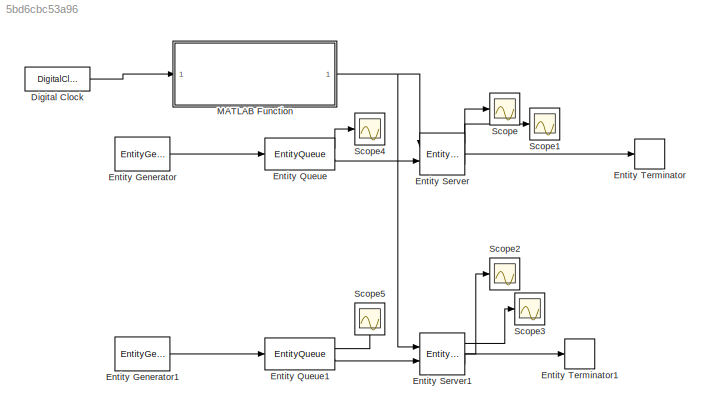
MODEL slx_5bd6cbc53a96
KIND model
CONFIG AbsTol = auto
CONFIG EnableMultiTasking = off
CONFIG FixedStep = auto
CONFIG MaxStep = auto
CONFIG MinStep = auto
CONFIG RelTol = 1e-3
CONFIG SampleTimeConstraint = Unconstrained
CONFIG Solver = VariableStepAuto
CONFIG SolverName = VariableStepAuto
CONFIG StartTime = 0.0
CONFIG StopTime = 300
BLOCK [DigitalClock] Digital Clock
  SampleTime = 1000
BLOCK [EntityGenerator] Entity Generator
  EntityType = Structured
  EntityTypeName = Entity
  IntergenerationTimeAction = mean=2;\ndt = -mean*log(1-rand());
  OutputPortMap = o3
  OutputPortMessageModes = m
  Period = 5
  Ports = [0, 1]
  TimeSource = MATLAB action
BLOCK [EntityGenerator] Entity Generator1
  EntityType = Structured
  EntityTypeName = Entity
  IntergenerationTimeAction = mean=2;\ndt = -mean*log(1-rand());
  OutputPortMap = o3
  OutputPortMessageModes = m
  Ports = [0, 1]
  TimeSource = MATLAB action
BLOCK [EntityQueue] Entity Queue
  AverageWait = on
  Capacity = inf
  InputPortMap = u0
  InputPortMessageModes = m
  OutputPortMap = o2,o5
  OutputPortMessageModes = n,m
  Ports = [1, 2]
BLOCK [EntityQueue] Entity Queue1
  AverageWait = on
  Capacity = inf
  InputPortMap = u0
  InputPortMessageModes = m
  OutputPortMap = o2,o5
  OutputPortMessageModes = n,m
  Ports = [1, 2]
  QueueType = LIFO
BLOCK [EntityServer] Entity Server
  AverageWait = on
  Capacity = 1
  InputPortMap = u0,u2
  InputPortMessageModes = n,m
  OutputPortMap = o4,o5,o9
  OutputPortMessageModes = n,n,m
  Ports = [2, 3]
  ServiceTimeAction = dt = getST(y);
  ServiceTimeAttributeName = Attribute1
  ServiceTimeSource = Signal port
  Utilization = on
BLOCK [EntityServer] Entity Server1
  AverageWait = on
  Capacity = 1
  InputPortMap = u0,u2
  InputPortMessageModes = n,m
  OutputPortMap = o4,o5,o9
  OutputPortMessageModes = n,n,m
  Ports = [2, 3]
  ServiceTimeSource = Signal port
  Utilization = on
BLOCK [EntityTerminator] Entity Terminator
  InputPortMap = u0
  InputPortMessageModes = m
  Ports = [1]
BLOCK [EntityTerminator] Entity Terminator1
  InputPortMap = u0
  InputPortMessageModes = m
  Ports = [1]
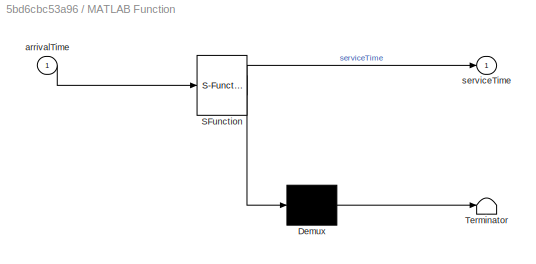
BLOCK [SubSystem] MATLAB Function
  ErrorFcn = Stateflow.Translate.translate
  PermitHierarchicalResolution = ExplicitOnly
  Ports = [1, 1]
  RequestExecContextInheritance = off
  SFBlockType = MATLAB Function
  TreatAsAtomicUnit = on
BLOCK [Demux] MATLAB Function/ Demux 
  Outputs = 1
  Ports = [1, 1]
BLOCK [S-Function] MATLAB Function/ SFunction 
  EnableBusSupport = on
  FunctionName = sf_sfun
  PortCounts = [1 2]
  Ports = [1, 2]
  SFcnIsStateOwnerBlock = off
  SFunctionDeploymentMode = off
  Tag = Stateflow S-Function P1 2
BLOCK [Terminator] MATLAB Function/ Terminator 
BLOCK [Inport] MATLAB Function/arrivalTime
  IconDisplay = Port number
BLOCK [Outport] MATLAB Function/serviceTime
  IconDisplay = Port number
BLOCK [Scope] Scope
  Floating = off
  NumInputPorts = 1
  Ports = [1]
  ScopeSpecificationString = Simulink.scopes.TimeScopeBlockCfg('CurrentConfiguration', extmgr.ConfigurationSet(extmgr.Configuration('Core','General UI',true),extmgr.Configuration('Core','Source UI',true),extmgr.Configuration('Sources','WiredSimulink',true),extmgr.Configuration('Visuals','Time Domain',true,'SerializedDisplays',{struct('MinYLimReal','0.34352','MaxYLimReal','1.07294','YLabelReal','','MinYLimMag','0.34352','MaxYL...<+1362ch>
BLOCK [Scope] Scope1
  Floating = off
  NumInputPorts = 1
  Ports = [1]
  ScopeSpecificationString = Simulink.scopes.TimeScopeBlockCfg('CurrentConfiguration', extmgr.ConfigurationSet(extmgr.Configuration('Core','General UI',true),extmgr.Configuration('Core','Source UI',true),extmgr.Configuration('Sources','WiredSimulink',true,'DataLoggingVariableName','ScopeData1'),extmgr.Configuration('Visuals','Time Domain',true,'SerializedDisplays',{struct('MinYLimReal','1.6859069811316809','MaxYLimReal','1.68...<+1460ch>
BLOCK [Scope] Scope2
  Floating = off
  NumInputPorts = 1
  Ports = [1]
  ScopeSpecificationString = Simulink.scopes.TimeScopeBlockCfg('CurrentConfiguration', extmgr.ConfigurationSet(extmgr.Configuration('Core','General UI',true),extmgr.Configuration('Core','Source UI',true),extmgr.Configuration('Sources','WiredSimulink',true,'DataLoggingVariableName','ScopeData1'),extmgr.Configuration('Visuals','Time Domain',true,'SerializedDisplays',{struct('MinYLimReal','0.34352','MaxYLimReal','1.07294','YLabe...<+1402ch>
BLOCK [Scope] Scope3
  Floating = off
  NumInputPorts = 1
  Ports = [1]
  ScopeSpecificationString = Simulink.scopes.TimeScopeBlockCfg('CurrentConfiguration', extmgr.ConfigurationSet(extmgr.Configuration('Core','General UI',true),extmgr.Configuration('Core','Source UI',true),extmgr.Configuration('Sources','WiredSimulink',true,'DataLoggingVariableName','ScopeData2'),extmgr.Configuration('Visuals','Time Domain',true,'SerializedDisplays',{struct('MinYLimReal','1.6859069811316809','MaxYLimReal','1.68...<+1461ch>
BLOCK [Scope] Scope4
  Floating = off
  NumInputPorts = 1
  Ports = [1]
  ScopeSpecificationString = Simulink.scopes.TimeScopeBlockCfg('CurrentConfiguration', extmgr.ConfigurationSet(extmgr.Configuration('Core','General UI',true),extmgr.Configuration('Core','Source UI',true),extmgr.Configuration('Sources','WiredSimulink',true,'DataLoggingVariableName','ScopeData3'),extmgr.Configuration('Visuals','Time Domain',true,'SerializedDisplays',{struct('MinYLimReal','-0.28539','MaxYLimReal','2.56847','YLab...<+1402ch>
BLOCK [Scope] Scope5
  Floating = off
  NumInputPorts = 1
  Ports = [1]
  ScopeSpecificationString = Simulink.scopes.TimeScopeBlockCfg('CurrentConfiguration', extmgr.ConfigurationSet(extmgr.Configuration('Core','General UI',true),extmgr.Configuration('Core','Source UI',true),extmgr.Configuration('Sources','WiredSimulink',true,'DataLoggingVariableName','ScopeData4'),extmgr.Configuration('Visuals','Time Domain',true,'SerializedDisplays',{struct('MinYLimReal','-0.28539','MaxYLimReal','2.56847','YLab...<+1403ch>
LINE Digital Clock:1 -> MATLAB Function:1
LINE Entity Generator1:1 -> Entity Queue1:1
LINE Entity Generator:1 -> Entity Queue:1
LINE Entity Queue1:1 -> Scope5:1
LINE Entity Queue1:2 -> Entity Server1:2
LINE Entity Queue:1 -> Scope4:1
LINE Entity Queue:2 -> Entity Server:2
LINE Entity Server1:1 -> Scope3:1
LINE Entity Server1:2 -> Scope2:1
LINE Entity Server1:3 -> Entity Terminator1:1
LINE Entity Server:1 -> Scope1:1
LINE Entity Server:2 -> Scope:1
LINE Entity Server:3 -> Entity Terminator:1
NET MATLAB Function:1 -> Entity Server1:1, Entity Server:1
note: NET lines group one-source signal fan-out (src -> all destinations, sorted); 1:1 wires keep LINE
CHART MATLAB Function states=1 transitions=1
  STATE_LABEL 'eML_blk_kernel()'
  STATE_LABEL 'SCRIPT:\n% consider the case in which our servers are humans and by passing time\n% they become tired and their servicetimes increases \nfunction serviceTime = serviceTimeFunction(arrivalTime)\n    mean = 0;\n    if arrivalTime < 100\n        mean = 1;\n    elseif arrivalTime >= 100 && arrivalTime < 200\n        mean = 2;\n    elseif arrivalTime >= 200 && arrivalTime < 300\n        mean = 4;\n    elseif arri...<+167ch>'
